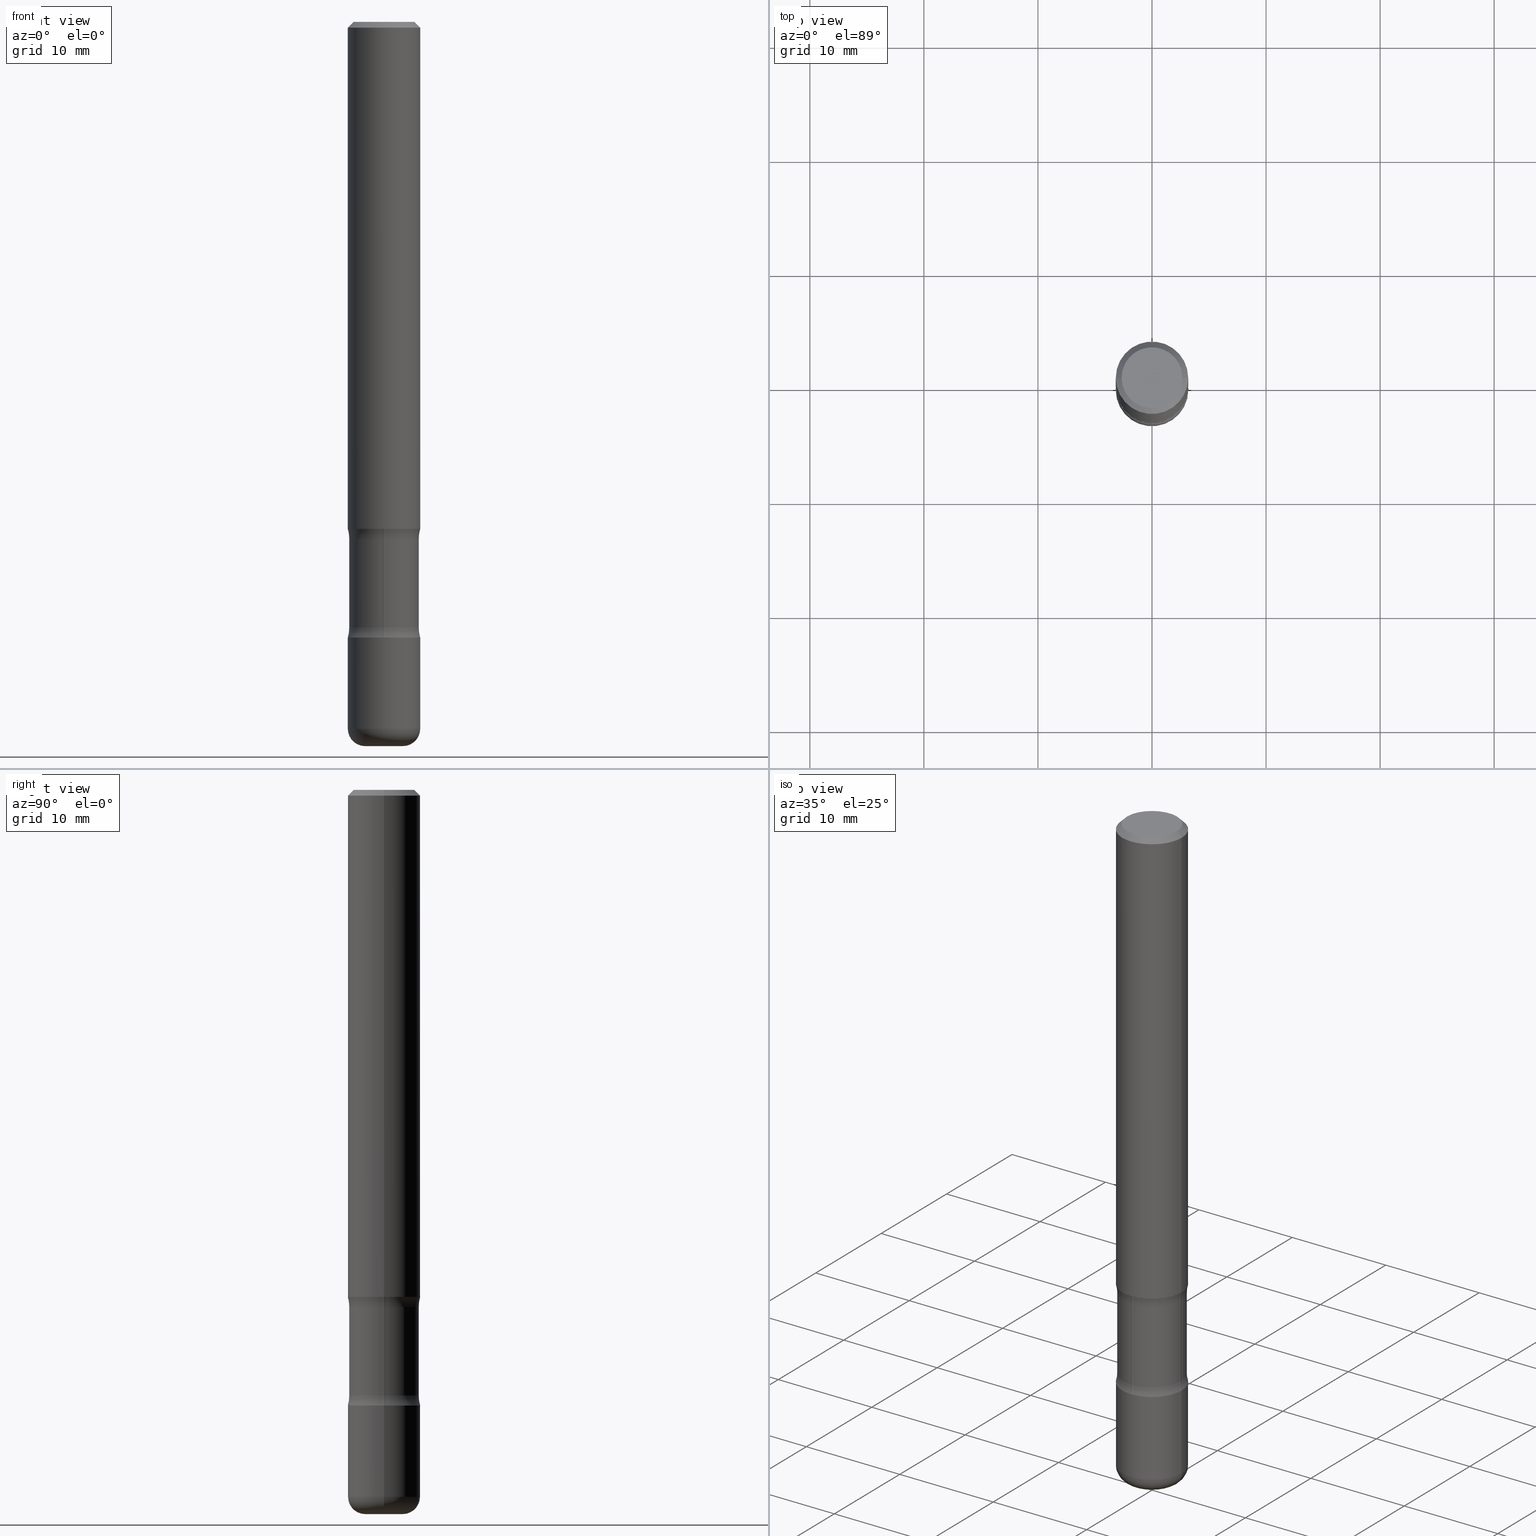
[diagram: canonical four-view strip — front | top / right | iso, engineering-drawing reading convention]
A machine part, canonical four-view strip (front | top / right | iso — engineering-drawing reading convention). The complete STEP part file that produces these views, byte-faithful:
ISO-10303-21;
HEADER;
FILE_DESCRIPTION (( 'STEP AP203' ),
    '1' );
FILE_NAME ('36236.STEP',
    '2023-03-11T07:12:04',
    ( '' ),
    ( '' ),
    'SwSTEP 2.0',
    'SolidWorks 2022',
    '' );
FILE_SCHEMA (( 'CONFIG_CONTROL_DESIGN' ));
ENDSEC;

DATA;
#1 = PERSON ( 'UNSPECIFIED', 'UNSPECIFIED', 'UNSPECIFIED', ('UNSPECIFIED'), ('UNSPECIFIED'), ('UNSPECIFIED') ) ;
#2 = CARTESIAN_POINT ( 'NONE',  ( -8.404110047269600546E-16, -0.1200000000000069622, -2.089999999999998082 ) ) ;
#3 = ORIENTED_EDGE ( 'NONE', *, *, #608, .T. ) ;
#4 = ADVANCED_FACE ( 'NONE', ( #69 ), #698, .T. ) ;
#5 = TOROIDAL_SURFACE ( 'NONE', #106, 0.2449999999999997180, 0.1250000000000000000 ) ;
#6 = AXIS2_PLACEMENT_3D ( 'NONE', #792, #480, #287 ) ;
#7 = EDGE_CURVE ( 'NONE', #81, #59, #168, .T. ) ;
#8 = CIRCLE ( 'NONE', #135, 0.1049999999999997047 ) ;
#9 = ORIENTED_EDGE ( 'NONE', *, *, #719, .T. ) ;
#10 = CIRCLE ( 'NONE', #658, 0.1199999999999996764 ) ;
#11 = CARTESIAN_POINT ( 'NONE',  ( 0.1199999999999996764, -8.135151519504520597E-15, -2.089999999999998526 ) ) ;
#12 = CARTESIAN_POINT ( 'NONE',  ( 5.196621213143415268E-29, -7.419397845041683624E-15, -2.125000000000000000 ) ) ;
#13 = CC_DESIGN_DATE_AND_TIME_ASSIGNMENT ( #47, #289, ( #444 ) ) ;
#14 = APPLICATION_CONTEXT ( 'configuration controlled 3d designs of mechanical parts and assemblies' ) ;
#15 = DIRECTION ( 'NONE',  ( 1.000000000000000000, -6.982962677686267499E-15, 0.000000000000000000 ) ) ;
#16 = ORIENTED_EDGE ( 'NONE', *, *, #323, .T. ) ;
#17 = DIRECTION ( 'NONE',  ( 2.438088387897960049E-29, -3.491481338843145188E-15, -1.000000000000000000 ) ) ;
#18 = CARTESIAN_POINT ( 'NONE',  ( 0.1199999999999996764, -7.070249711157368710E-15, -1.785000000000001252 ) ) ;
#19 = CONICAL_SURFACE ( 'NONE', #722, 1127.411546571190001, 1.535889741755001037 ) ;
#20 = ORIENTED_EDGE ( 'NONE', *, *, #253, .F. ) ;
#21 = AXIS2_PLACEMENT_3D ( 'NONE', #386, #26, #643 ) ;
#22 = EDGE_CURVE ( 'NONE', #524, #59, #586, .T. ) ;
#23 = PLANE ( 'NONE',  #107 ) ;
#24 = CARTESIAN_POINT ( 'NONE',  ( 6.113672015462840371E-29, -8.728703347107863365E-15, -2.499999999999999556 ) ) ;
#25 = ORIENTED_EDGE ( 'NONE', *, *, #334, .F. ) ;
#26 = DIRECTION ( 'NONE',  ( 1.000000000000000000, -6.860497997771530774E-15, 4.840736773245030018E-29 ) ) ;
#27 = DIRECTION ( 'NONE',  ( 6.982962677686265922E-15, 1.000000000000000000, -4.553079989440450925E-15 ) ) ;
#28 = EDGE_LOOP ( 'NONE', ( #269, #510 ) ) ;
#29 = DIRECTION ( 'NONE',  ( -2.445468806185136597E-29, 3.491481338843145583E-15, 1.000000000000000000 ) ) ;
#30 = CARTESIAN_POINT ( 'NONE',  ( -0.1249999999999996947, 8.030407079339179699E-16, -0.02000000000000007674 ) ) ;
#31 = EDGE_CURVE ( 'NONE', #559, #179, #213, .T. ) ;
#32 = ORIENTED_EDGE ( 'NONE', *, *, #7, .F. ) ;
#33 = CIRCLE ( 'NONE', #80, 0.1250000000000000278 ) ;
#34 = CIRCLE ( 'NONE', #261, 0.1250000000000000278 ) ;
#35 = FACE_OUTER_BOUND ( 'NONE', #654, .T. ) ;
#36 = DIRECTION ( 'NONE',  ( -2.445468806185136597E-29, 3.491481338843145583E-15, 1.000000000000000000 ) ) ;
#37 = EDGE_CURVE ( 'NONE', #279, #782, #199, .T. ) ;
#38 = ORIENTED_EDGE ( 'NONE', *, *, #479, .T. ) ;
#39 =( NAMED_UNIT ( * ) PLANE_ANGLE_UNIT ( ) SI_UNIT ( $, .RADIAN. ) );
#40 = PLANE ( 'NONE',  #188 ) ;
#41 = FACE_OUTER_BOUND ( 'NONE', #758, .T. ) ;
#42 = DIRECTION ( 'NONE',  ( -2.445468806185136597E-29, 3.491481338843145583E-15, 1.000000000000000000 ) ) ;
#43 = EDGE_CURVE ( 'NONE', #50, #209, #56, .T. ) ;
#44 = CIRCLE ( 'NONE', #201, 0.1250000000000000278 ) ;
#45 = DIRECTION ( 'NONE',  ( 2.441927486943611440E-29, -3.496552709556383177E-15, -1.000000000000000000 ) ) ;
#46 = CIRCLE ( 'NONE', #483, 0.1250000000000000278 ) ;
#47 = DATE_AND_TIME ( #676, #799 ) ;
#48 = CARTESIAN_POINT ( 'NONE',  ( 5.196621213143415268E-29, -7.419397845041683624E-15, -2.125000000000000000 ) ) ;
#49 = FACE_OUTER_BOUND ( 'NONE', #464, .T. ) ;
#50 = VERTEX_POINT ( 'NONE', #319 ) ;
#51 = CALENDAR_DATE ( 2023, 11, 3 ) ;
#52 = DIRECTION ( 'NONE',  ( 6.982962677686265133E-15, 1.000000000000000000, -3.496552709556383177E-15 ) ) ;
#53 = ORIENTED_EDGE ( 'NONE', *, *, #103, .T. ) ;
#54 = ADVANCED_FACE ( 'NONE', ( #693 ), #245, .F. ) ;
#55 = APPROVAL_ROLE ( '' ) ;
#56 = CIRCLE ( 'NONE', #511, 0.1199999999999996764 ) ;
#57 = CARTESIAN_POINT ( 'NONE',  ( 4.890937612370292426E-31, -6.982962677686317493E-17, -0.02000000000000007674 ) ) ;
#58 = CIRCLE ( 'NONE', #247, 0.1049999999999997047 ) ;
#59 = VERTEX_POINT ( 'NONE', #18 ) ;
#60 = APPLICATION_PROTOCOL_DEFINITION ( 'international standard', 'config_control_design', 1994, #256 ) ;
#61 = CARTESIAN_POINT ( 'NONE',  ( 4.366365867582590893E-29, -6.230569923792518818E-15, -1.785000000000001252 ) ) ;
#62 = DIRECTION ( 'NONE',  ( -2.445468806185136597E-29, 3.491481338843145583E-15, 1.000000000000000000 ) ) ;
#63 = VERTEX_POINT ( 'NONE', #208 ) ;
#64 = CARTESIAN_POINT ( 'NONE',  ( 0.1049999999999997047, -8.238720831321557908E-16, -4.695363739109907908E-17 ) ) ;
#65 = CARTESIAN_POINT ( 'NONE',  ( 6.113672015462843734E-29, -8.728703347107868098E-15, -2.500000000000001332 ) ) ;
#66 = VERTEX_POINT ( 'NONE', #387 ) ;
#67 = MANIFOLD_SOLID_BREP ( 'Body-Move/Copy2[1]', #284 ) ;
#68 = FACE_OUTER_BOUND ( 'NONE', #729, .T. ) ;
#69 = FACE_OUTER_BOUND ( 'NONE', #299, .T. ) ;
#70 = CIRCLE ( 'NONE', #440, 0.06500000000000001610 ) ;
#71 = AXIS2_PLACEMENT_3D ( 'NONE', #441, #624, #78 ) ;
#72 = DIRECTION ( 'NONE',  ( -1.000000000000000000, 6.982962677686265922E-15, -4.883557194083112340E-29 ) ) ;
#73 = ORIENTED_EDGE ( 'NONE', *, *, #647, .T. ) ;
#74 = CARTESIAN_POINT ( 'NONE',  ( 5.196621213143415268E-29, -7.419397845041683624E-15, -2.125000000000000000 ) ) ;
#75 = CARTESIAN_POINT ( 'NONE',  ( 0.2449999999999996347, -7.943120045868153627E-15, -1.785000000000001696 ) ) ;
#76 = EDGE_CURVE ( 'NONE', #803, #806, #706, .T. ) ;
#77 = ORIENTED_EDGE ( 'NONE', *, *, #43, .F. ) ;
#78 = DIRECTION ( 'NONE',  ( 1.000000000000000000, -6.982962677686269077E-15, 0.000000000000000000 ) ) ;
#79 = DIRECTION ( 'NONE',  ( -2.445468806185136597E-29, 3.491481338843145583E-15, 1.000000000000000000 ) ) ;
#80 = AXIS2_PLACEMENT_3D ( 'NONE', #228, #283, #540 ) ;
#81 = VERTEX_POINT ( 'NONE', #142 ) ;
#82 = EDGE_CURVE ( 'NONE', #459, #524, #528, .T. ) ;
#83 = CIRCLE ( 'NONE', #227, 0.05250000000000000500 ) ;
#84 = PRODUCT_DEFINITION_FORMATION_WITH_SPECIFIED_SOURCE ( 'ANY', '', #566, .NOT_KNOWN. ) ;
#85 = CARTESIAN_POINT ( 'NONE',  ( 5.196621213143415268E-29, -7.419397845041683624E-15, -2.125000000000000000 ) ) ;
#86 = CARTESIAN_POINT ( 'NONE',  ( 4.365161819040472816E-29, -6.232294189835020176E-15, -1.785000000000001696 ) ) ;
#87 = EDGE_LOOP ( 'NONE', ( #233, #707, #681, #32 ) ) ;
#88 = DIRECTION ( 'NONE',  ( -2.445468806185136877E-29, 3.491481338843145188E-15, 1.000000000000000000 ) ) ;
#89 = EDGE_CURVE ( 'NONE', #699, #803, #70, .T. ) ;
#90 = LINE ( 'NONE', #741, #541 ) ;
#91 = ORIENTED_EDGE ( 'NONE', *, *, #504, .F. ) ;
#92 = DIRECTION ( 'NONE',  ( 6.982962677686265922E-15, 1.000000000000000000, -3.496552709556383571E-15 ) ) ;
#93 = ADVANCED_FACE ( 'NONE', ( #450, #704 ), #645, .F. ) ;
#94 = FACE_OUTER_BOUND ( 'NONE', #87, .T. ) ;
#95 = ORIENTED_EDGE ( 'NONE', *, *, #575, .F. ) ;
#96 = CIRCLE ( 'NONE', #362, 0.1199999999999996764 ) ;
#97 = AXIS2_PLACEMENT_3D ( 'NONE', #130, #258, #762 ) ;
#98 = CARTESIAN_POINT ( 'NONE',  ( 4.279570410823989044E-29, -6.110092342975505460E-15, -1.750000000000000222 ) ) ;
#99 = LOCAL_TIME ( 2, 12, 4.000000000000000000, #672 ) ;
#100 = ADVANCED_FACE ( 'NONE', ( #192 ), #771, .T. ) ;
#101 = DIRECTION ( 'NONE',  ( -2.445468806185136597E-29, 3.491481338843145583E-15, 1.000000000000000000 ) ) ;
#102 = CARTESIAN_POINT ( 'NONE',  ( 8.379555213223933021E-16, 0.1199999999999934452, -1.785000000000001918 ) ) ;
#103 = EDGE_CURVE ( 'NONE', #63, #174, #282, .T. ) ;
#104 = CARTESIAN_POINT ( 'NONE',  ( 5.111153751100385248E-29, -7.297018500207206808E-15, -2.089999999999998526 ) ) ;
#105 = PERSON_AND_ORGANIZATION_ROLE ( 'design_owner' ) ;
#106 = AXIS2_PLACEMENT_3D ( 'NONE', #358, #416, #173 ) ;
#107 = AXIS2_PLACEMENT_3D ( 'NONE', #74, #17, #703 ) ;
#108 = FACE_OUTER_BOUND ( 'NONE', #551, .T. ) ;
#109 = DIRECTION ( 'NONE',  ( 2.441927486943611440E-29, -3.496552709556383571E-15, -1.000000000000000000 ) ) ;
#110 = CC_DESIGN_APPROVAL ( #783, ( #84 ) ) ;
#111 = ORIENTED_EDGE ( 'NONE', *, *, #300, .F. ) ;
#112 = PLANE ( 'NONE',  #567 ) ;
#113 = ADVANCED_FACE ( 'NONE', ( #653 ), #226, .F. ) ;
#114 = ORIENTED_EDGE ( 'NONE', *, *, #742, .T. ) ;
#115 = PERSON_AND_ORGANIZATION ( #1, #595 ) ;
#116 = DIRECTION ( 'NONE',  ( -1.000000000000000000, 6.982962677686265922E-15, -4.883557194083112340E-29 ) ) ;
#117 = EDGE_CURVE ( 'NONE', #578, #59, #260, .T. ) ;
#118 = ORIENTED_EDGE ( 'NONE', *, *, #512, .T. ) ;
#119 = PERSON_AND_ORGANIZATION ( #1, #595 ) ;
#120 = FACE_OUTER_BOUND ( 'NONE', #768, .T. ) ;
#121 = ORIENTED_EDGE ( 'NONE', *, *, #727, .F. ) ;
#122 = AXIS2_PLACEMENT_3D ( 'NONE', #697, #72, #207 ) ;
#123 = LOCAL_TIME ( 2, 12, 4.000000000000000000, #489 ) ;
#124 = VERTEX_POINT ( 'NONE', #333 ) ;
#125 = SHAPE_DEFINITION_REPRESENTATION ( #291, #305 ) ;
#126 = DIRECTION ( 'NONE',  ( -2.445468806185136597E-29, 3.491481338843145583E-15, 1.000000000000000000 ) ) ;
#127 = DIRECTION ( 'NONE',  ( -1.000000000000000000, 6.982962677686266711E-15, 0.000000000000000000 ) ) ;
#128 = ORIENTED_EDGE ( 'NONE', *, *, #539, .F. ) ;
#129 = ADVANCED_FACE ( 'NONE', ( #94 ), #733, .F. ) ;
#130 = CARTESIAN_POINT ( 'NONE',  ( 5.111029804926932617E-29, -7.297195998182170485E-15, -2.089999999999998526 ) ) ;
#131 = ORIENTED_EDGE ( 'NONE', *, *, #767, .T. ) ;
#132 = CARTESIAN_POINT ( 'NONE',  ( -0.1199999999999996764, -6.487882070305806315E-15, -2.089999999999998526 ) ) ;
#133 = DIRECTION ( 'NONE',  ( 2.441927486943611440E-29, -3.496552709556383177E-15, -1.000000000000000000 ) ) ;
#134 = AXIS2_PLACEMENT_3D ( 'NONE', #400, #36, #164 ) ;
#135 = AXIS2_PLACEMENT_3D ( 'NONE', #223, #29, #466 ) ;
#136 = ORIENTED_EDGE ( 'NONE', *, *, #190, .T. ) ;
#137 = CARTESIAN_POINT ( 'NONE',  ( 4.279570410823989044E-29, -6.110092342975505460E-15, -1.750000000000000222 ) ) ;
#138 = ORIENTED_EDGE ( 'NONE', *, *, #37, .T. ) ;
#139 = EDGE_CURVE ( 'NONE', #394, #669, #44, .T. ) ;
#140 = ORIENTED_EDGE ( 'NONE', *, *, #37, .F. ) ;
#141 = CARTESIAN_POINT ( 'NONE',  ( -1.680822009453978879E-15, -0.2450000000000058797, -1.785000000000000808 ) ) ;
#142 = CARTESIAN_POINT ( 'NONE',  ( 0.1250000000000000555, -6.982962677686288799E-15, -1.750000000000000222 ) ) ;
#143 = ORIENTED_EDGE ( 'NONE', *, *, #242, .T. ) ;
#144 = DIRECTION ( 'NONE',  ( -2.445468806185136597E-29, 3.491481338843145583E-15, 1.000000000000000000 ) ) ;
#145 = CARTESIAN_POINT ( 'NONE',  ( 0.1199999999999996764, -6.948047864297855572E-15, -1.750000000000000222 ) ) ;
#146 = AXIS2_PLACEMENT_3D ( 'NONE', #252, #195, #701 ) ;
#147 = EDGE_LOOP ( 'NONE', ( #370, #114 ) ) ;
#148 = ADVANCED_FACE ( 'NONE', ( #41 ), #19, .F. ) ;
#149 = LINE ( 'NONE', #725, #236 ) ;
#150 = CYLINDRICAL_SURFACE ( 'NONE', #457, 0.1199999999999996764 ) ;
#151 = DIRECTION ( 'NONE',  ( -2.445468806185136597E-29, 3.491481338843145583E-15, 1.000000000000000000 ) ) ;
#152 = ORIENTED_EDGE ( 'NONE', *, *, #89, .T. ) ;
#153 = DIRECTION ( 'NONE',  ( -1.000000000000000000, 6.982962677686265922E-15, -4.876176775795935793E-29 ) ) ;
#154 = DIRECTION ( 'NONE',  ( 2.445468806185136597E-29, -3.491481338843145583E-15, -1.000000000000000000 ) ) ;
#155 = EDGE_LOOP ( 'NONE', ( #77, #678, #138, #182 ) ) ;
#156 = DIRECTION ( 'NONE',  ( -2.445468806185136597E-29, 3.491481338843145583E-15, 1.000000000000000000 ) ) ;
#157 = DIRECTION ( 'NONE',  ( 1.000000000000000000, -6.982962677686261977E-15, 0.000000000000000000 ) ) ;
#158 = CARTESIAN_POINT ( 'NONE',  ( 5.196621213143415268E-29, -7.419397845041683624E-15, -2.125000000000000000 ) ) ;
#159 = AXIS2_PLACEMENT_3D ( 'NONE', #487, #116, #294 ) ;
#160 = AXIS2_PLACEMENT_3D ( 'NONE', #198, #518, #765 ) ;
#161 = DIRECTION ( 'NONE',  ( 1.000000000000000000, -6.982962677686269866E-15, 4.883557194083114022E-29 ) ) ;
#162 = DIRECTION ( 'NONE',  ( 1.000000000000000000, -6.982962677686261977E-15, 0.000000000000000000 ) ) ;
#163 = EDGE_CURVE ( 'NONE', #59, #578, #602, .T. ) ;
#164 = DIRECTION ( 'NONE',  ( 1.000000000000000000, -6.982962677686266711E-15, 4.883557194083112901E-29 ) ) ;
#165 = PERSON_AND_ORGANIZATION ( #1, #595 ) ;
#166 = LINE ( 'NONE', #667, #320 ) ;
#167 = EDGE_LOOP ( 'NONE', ( #517, #417, #220, #304 ) ) ;
#168 = CIRCLE ( 'NONE', #628, 0.1249999999999999584 ) ;
#169 = ADVANCED_FACE ( 'NONE', ( #474 ), #427, .F. ) ;
#170 = PERSON_AND_ORGANIZATION ( #1, #595 ) ;
#171 = AXIS2_PLACEMENT_3D ( 'NONE', #723, #101, #162 ) ;
#172 = CIRCLE ( 'NONE', #789, 0.1249999999999996947 ) ;
#173 = DIRECTION ( 'NONE',  ( 1.000000000000000000, -6.982962677686269866E-15, 4.883557194083114022E-29 ) ) ;
#174 = VERTEX_POINT ( 'NONE', #30 ) ;
#175 = PERSON_AND_ORGANIZATION_ROLE ( 'creator' ) ;
#176 = CC_DESIGN_PERSON_AND_ORGANIZATION_ASSIGNMENT ( #165, #105, ( #566 ) ) ;
#177 = EDGE_CURVE ( 'NONE', #806, #621, #402, .T. ) ;
#178 = DIRECTION ( 'NONE',  ( -1.000000000000000000, 6.982962677686265922E-15, -4.876176775795935793E-29 ) ) ;
#179 = VERTEX_POINT ( 'NONE', #340 ) ;
#180 = MECHANICAL_CONTEXT ( 'NONE', #14, 'mechanical' ) ;
#181 = DIRECTION ( 'NONE',  ( 1.000000000000000000, -6.982962677686266711E-15, 0.000000000000000000 ) ) ;
#182 = ORIENTED_EDGE ( 'NONE', *, *, #485, .F. ) ;
#183 = ORIENTED_EDGE ( 'NONE', *, *, #539, .T. ) ;
#184 = PERSON_AND_ORGANIZATION_ROLE ( 'classification_officer' ) ;
#185 = CARTESIAN_POINT ( 'NONE',  ( 0.06500000000000000222, -8.973107040826881753E-15, -2.440000000000000391 ) ) ;
#186 = CIRCLE ( 'NONE', #456, 0.1249999999999996947 ) ;
#187 = ORIENTED_EDGE ( 'NONE', *, *, #512, .F. ) ;
#188 = AXIS2_PLACEMENT_3D ( 'NONE', #85, #715, #153 ) ;
#189 = CC_DESIGN_APPROVAL ( #490, ( #374 ) ) ;
#190 = EDGE_CURVE ( 'NONE', #448, #675, #463, .T. ) ;
#191 = LINE ( 'NONE', #437, #644 ) ;
#192 = FACE_OUTER_BOUND ( 'NONE', #627, .T. ) ;
#193 = ORIENTED_EDGE ( 'NONE', *, *, #22, .T. ) ;
#194 = DIRECTION ( 'NONE',  ( -2.445468806185136597E-29, 3.491481338843145583E-15, 1.000000000000000000 ) ) ;
#195 = DIRECTION ( 'NONE',  ( 2.441927486943611440E-29, -3.496552709556383177E-15, -1.000000000000000000 ) ) ;
#196 = VERTEX_POINT ( 'NONE', #404 ) ;
#197 = EDGE_CURVE ( 'NONE', #803, #699, #694, .T. ) ;
#198 = CARTESIAN_POINT ( 'NONE',  ( 0.000000000000000000, 0.000000000000000000, 0.000000000000000000 ) ) ;
#199 = CIRCLE ( 'NONE', #146, 0.1250000000000000278 ) ;
#200 = ORIENTED_EDGE ( 'NONE', *, *, #719, .F. ) ;
#201 = AXIS2_PLACEMENT_3D ( 'NONE', #278, #267, #470 ) ;
#202 = AXIS2_PLACEMENT_3D ( 'NONE', #635, #306, #315 ) ;
#203 = PLANE ( 'NONE',  #249 ) ;
#204 = DESIGN_CONTEXT ( 'detailed design', #256, 'design' ) ;
#205 = ORIENTED_EDGE ( 'NONE', *, *, #197, .T. ) ;
#206 = ORIENTED_EDGE ( 'NONE', *, *, #314, .F. ) ;
#207 = DIRECTION ( 'NONE',  ( -6.982962677686265922E-15, -1.000000000000000000, 0.000000000000000000 ) ) ;
#208 = CARTESIAN_POINT ( 'NONE',  ( -0.1049999999999997047, 7.681258945454869124E-16, -4.695363739110977184E-17 ) ) ;
#209 = VERTEX_POINT ( 'NONE', #102 ) ;
#210 = DIRECTION ( 'NONE',  ( 2.445468806185136597E-29, -3.491481338843145583E-15, -1.000000000000000000 ) ) ;
#211 = DIRECTION ( 'NONE',  ( 2.445468806185136597E-29, -3.491481338843145583E-15, -1.000000000000000000 ) ) ;
#212 = CARTESIAN_POINT ( 'NONE',  ( 1.148236555768741665E-45, -1.639377487418492057E-31, -4.695363739110452099E-17 ) ) ;
#213 = CIRCLE ( 'NONE', #497, 0.1250000000000000278 ) ;
#214 = AXIS2_PLACEMENT_3D ( 'NONE', #355, #62, #303 ) ;
#215 = APPROVAL ( #613, 'UNSPECIFIED' ) ;
#216 = AXIS2_PLACEMENT_3D ( 'NONE', #313, #264, #563 ) ;
#217 = VERTEX_POINT ( 'NONE', #601 ) ;
#218 = FACE_OUTER_BOUND ( 'NONE', #147, .T. ) ;
#219 = DIRECTION ( 'NONE',  ( -2.445468806185136597E-29, 3.491481338843145583E-15, 1.000000000000000000 ) ) ;
#220 = ORIENTED_EDGE ( 'NONE', *, *, #633, .T. ) ;
#221 = DIRECTION ( 'NONE',  ( -2.445468806185136597E-29, 3.491481338843145583E-15, 1.000000000000000000 ) ) ;
#222 =( NAMED_UNIT ( * ) SI_UNIT ( $, .STERADIAN. ) SOLID_ANGLE_UNIT ( ) );
#223 = CARTESIAN_POINT ( 'NONE',  ( 1.148236555768741665E-45, -1.639377487418492057E-31, -4.695363739110452099E-17 ) ) ;
#224 = EDGE_CURVE ( 'NONE', #124, #196, #33, .T. ) ;
#225 = DIRECTION ( 'NONE',  ( 6.982962677686265922E-15, 1.000000000000000000, -3.496552709556383177E-15 ) ) ;
#226 = TOROIDAL_SURFACE ( 'NONE', #134, 0.2449999999999996347, 0.1250000000000000000 ) ;
#227 = AXIS2_PLACEMENT_3D ( 'NONE', #65, #573, #15 ) ;
#228 = CARTESIAN_POINT ( 'NONE',  ( 4.279570410823989044E-29, -6.110092342975505460E-15, -1.750000000000000222 ) ) ;
#229 = DIRECTION ( 'NONE',  ( -6.982962677686266711E-15, -1.000000000000000000, 3.491481338843145583E-15 ) ) ;
#230 = ORIENTED_EDGE ( 'NONE', *, *, #224, .F. ) ;
#231 = EDGE_CURVE ( 'NONE', #621, #806, #471, .T. ) ;
#232 = FACE_OUTER_BOUND ( 'NONE', #155, .T. ) ;
#233 = ORIENTED_EDGE ( 'NONE', *, *, #523, .F. ) ;
#234 = COORDINATED_UNIVERSAL_TIME_OFFSET ( 5, 0, .BEHIND. ) ;
#235 = AXIS2_PLACEMENT_3D ( 'NONE', #591, #341, #272 ) ;
#236 = VECTOR ( 'NONE', #538, 39.37007874015748143 ) ;
#237 = CARTESIAN_POINT ( 'NONE',  ( 4.280898405539560873E-29, -6.108190578958041214E-15, -1.750000000000000222 ) ) ;
#238 = ORIENTED_EDGE ( 'NONE', *, *, #585, .T. ) ;
#239 = DATE_AND_TIME ( #51, #458 ) ;
#240 = ORIENTED_EDGE ( 'NONE', *, *, #767, .F. ) ;
#241 = PLANE ( 'NONE',  #616 ) ;
#242 = EDGE_CURVE ( 'NONE', #359, #547, #96, .T. ) ;
#243 = ORIENTED_EDGE ( 'NONE', *, *, #242, .F. ) ;
#244 = ORIENTED_EDGE ( 'NONE', *, *, #268, .F. ) ;
#245 = TOROIDAL_SURFACE ( 'NONE', #708, 0.2449999999999996347, 0.1250000000000000000 ) ;
#246 = DIRECTION ( 'NONE',  ( 1.000000000000000000, -6.860497997771530774E-15, 4.840736773245030018E-29 ) ) ;
#247 = AXIS2_PLACEMENT_3D ( 'NONE', #212, #712, #393 ) ;
#248 = DIRECTION ( 'NONE',  ( -2.438088387897960049E-29, 3.491481338843145188E-15, 1.000000000000000000 ) ) ;
#249 = AXIS2_PLACEMENT_3D ( 'NONE', #753, #576, #757 ) ;
#250 = LOCAL_TIME ( 2, 12, 4.000000000000000000, #418 ) ;
#251 = CARTESIAN_POINT ( 'NONE',  ( 4.279570410823989044E-29, -6.110092342975505460E-15, -1.750000000000000222 ) ) ;
#252 = CARTESIAN_POINT ( 'NONE',  ( 4.280898405539560873E-29, -6.108190578958041214E-15, -1.750000000000000222 ) ) ;
#253 = EDGE_CURVE ( 'NONE', #63, #734, #58, .T. ) ;
#254 = CARTESIAN_POINT ( 'NONE',  ( 0.000000000000000000, 0.000000000000000000, 0.000000000000000000 ) ) ;
#255 = DIRECTION ( 'NONE',  ( 7.105427357601001859E-15, 1.000000000000000000, -3.491481338843145583E-15 ) ) ;
#256 = APPLICATION_CONTEXT ( 'configuration controlled 3d designs of mechanical parts and assemblies' ) ;
#257 = CC_DESIGN_PERSON_AND_ORGANIZATION_ASSIGNMENT ( #361, #293, ( #84 ) ) ;
#258 = DIRECTION ( 'NONE',  ( 2.441927486943611440E-29, -3.496552709556383177E-15, -1.000000000000000000 ) ) ;
#259 = VERTEX_POINT ( 'NONE', #650 ) ;
#260 = CIRCLE ( 'NONE', #273, 0.1199999999999996764 ) ;
#261 = AXIS2_PLACEMENT_3D ( 'NONE', #137, #449, #366 ) ;
#262 = APPROVAL_PERSON_ORGANIZATION ( #119, #783, #486 ) ;
#263 = ORIENTED_EDGE ( 'NONE', *, *, #82, .F. ) ;
#264 = DIRECTION ( 'NONE',  ( 2.441927486943611440E-29, -3.496552709556383177E-15, -1.000000000000000000 ) ) ;
#265 = DIRECTION ( 'NONE',  ( -2.445468806185136597E-29, 3.491481338843145583E-15, 1.000000000000000000 ) ) ;
#266 = ORIENTED_EDGE ( 'NONE', *, *, #334, .T. ) ;
#267 = DIRECTION ( 'NONE',  ( -2.445468806185136597E-29, 3.491481338843145583E-15, 1.000000000000000000 ) ) ;
#268 = EDGE_CURVE ( 'NONE', #459, #578, #90, .T. ) ;
#269 = ORIENTED_EDGE ( 'NONE', *, *, #89, .F. ) ;
#270 = LINE ( 'NONE', #391, #336 ) ;
#271 = FACE_OUTER_BOUND ( 'NONE', #651, .T. ) ;
#272 = DIRECTION ( 'NONE',  ( 1.000000000000000000, -6.982962677686266711E-15, 4.883557194083112901E-29 ) ) ;
#273 = AXIS2_PLACEMENT_3D ( 'NONE', #534, #42, #157 ) ;
#274 = CIRCLE ( 'NONE', #542, 0.1250000000000000278 ) ;
#275 = EDGE_LOOP ( 'NONE', ( #317, #615, #3, #430 ) ) ;
#276 = DIRECTION ( 'NONE',  ( -2.445468806185136877E-29, 3.491481338843145188E-15, 1.000000000000000000 ) ) ;
#277 = FACE_OUTER_BOUND ( 'NONE', #425, .T. ) ;
#278 = CARTESIAN_POINT ( 'NONE',  ( 5.196621213143415268E-29, -7.419397845041683624E-15, -2.125000000000000000 ) ) ;
#279 = VERTEX_POINT ( 'NONE', #607 ) ;
#280 = EDGE_CURVE ( 'NONE', #699, #621, #579, .T. ) ;
#281 = DIRECTION ( 'NONE',  ( -2.445468806185136597E-29, 3.491481338843145583E-15, 1.000000000000000000 ) ) ;
#282 = LINE ( 'NONE', #522, #760 ) ;
#283 = DIRECTION ( 'NONE',  ( -2.445468806185136597E-29, 3.491481338843145583E-15, 1.000000000000000000 ) ) ;
#284 = CLOSED_SHELL ( 'NONE', ( #148, #746, #384, #93, #408, #4, #659, #800 ) ) ;
#285 = AXIS2_PLACEMENT_3D ( 'NONE', #57, #290, #127 ) ;
#286 = CIRCLE ( 'NONE', #21, 0.1250000000000000000 ) ;
#287 = DIRECTION ( 'NONE',  ( 1.000000000000000000, -6.982962677686264344E-15, 4.883557194083112340E-29 ) ) ;
#288 = EDGE_CURVE ( 'NONE', #587, #675, #656, .T. ) ;
#289 = DATE_TIME_ROLE ( 'classification_date' ) ;
#290 = DIRECTION ( 'NONE',  ( 2.445468806185136597E-29, -3.491481338843145583E-15, -1.000000000000000000 ) ) ;
#291 = PRODUCT_DEFINITION_SHAPE ( 'NONE', 'NONE',  #374 ) ;
#292 = EDGE_LOOP ( 'NONE', ( #9, #745, #243, #638 ) ) ;
#293 = PERSON_AND_ORGANIZATION_ROLE ( 'design_supplier' ) ;
#294 = DIRECTION ( 'NONE',  ( -6.982962677686265922E-15, -1.000000000000000000, 0.000000000000000000 ) ) ;
#295 = ORIENTED_EDGE ( 'NONE', *, *, #253, .T. ) ;
#296 = AXIS2_PLACEMENT_3D ( 'NONE', #795, #495, #561 ) ;
#297 = AXIS2_PLACEMENT_3D ( 'NONE', #588, #392, #737 ) ;
#298 = FACE_OUTER_BOUND ( 'NONE', #636, .T. ) ;
#299 = EDGE_LOOP ( 'NONE', ( #330, #688, #131, #773 ) ) ;
#300 = EDGE_CURVE ( 'NONE', #196, #124, #553, .T. ) ;
#301 = SECURITY_CLASSIFICATION_LEVEL ( 'unclassified' ) ;
#302 = DIRECTION ( 'NONE',  ( 2.441927486943611440E-29, -3.496552709556383177E-15, -1.000000000000000000 ) ) ;
#303 = DIRECTION ( 'NONE',  ( 1.000000000000000000, -6.982962677686264344E-15, 4.883557194083112340E-29 ) ) ;
#304 = ORIENTED_EDGE ( 'NONE', *, *, #727, .T. ) ;
#305 = ADVANCED_BREP_SHAPE_REPRESENTATION ( '36236', ( #67, #612, #332, #618, #484 ), #350 ) ;
#306 = DIRECTION ( 'NONE',  ( 2.441927486943611440E-29, -3.496552709556383177E-15, -1.000000000000000000 ) ) ;
#307 = ORIENTED_EDGE ( 'NONE', *, *, #190, .F. ) ;
#308 = TOROIDAL_SURFACE ( 'NONE', #214, 0.06500000000000000222, 0.05999999999999968553 ) ;
#309 = PLANE ( 'NONE',  #711 ) ;
#310 = AXIS2_PLACEMENT_3D ( 'NONE', #415, #606, #619 ) ;
#311 = DIRECTION ( 'NONE',  ( -6.982962677686266711E-15, -1.000000000000000000, 3.491481338843145583E-15 ) ) ;
#312 = EDGE_CURVE ( 'NONE', #782, #279, #499, .T. ) ;
#313 = CARTESIAN_POINT ( 'NONE',  ( 5.111153751100385248E-29, -7.297018500207206808E-15, -2.089999999999998526 ) ) ;
#314 = EDGE_CURVE ( 'NONE', #734, #66, #477, .T. ) ;
#315 = DIRECTION ( 'NONE',  ( 6.982962677686265922E-15, 1.000000000000000000, -4.370956789862820361E-15 ) ) ;
#316 = DIRECTION ( 'NONE',  ( 2.441927486943611440E-29, -3.496552709556383177E-15, -1.000000000000000000 ) ) ;
#317 = ORIENTED_EDGE ( 'NONE', *, *, #752, .F. ) ;
#318 = DIRECTION ( 'NONE',  ( 2.441927486943611440E-29, -3.496552709556383177E-15, -1.000000000000000000 ) ) ;
#319 = CARTESIAN_POINT ( 'NONE',  ( -8.404110047269684362E-16, -0.1200000000000059214, -1.785000000000000808 ) ) ;
#320 = VECTOR ( 'NONE', #109, 39.37007874015748143 ) ;
#321 = AXIS2_PLACEMENT_3D ( 'NONE', #141, #246, #509 ) ;
#322 = ORIENTED_EDGE ( 'NONE', *, *, #312, .T. ) ;
#323 = EDGE_CURVE ( 'NONE', #209, #359, #166, .T. ) ;
#324 = CARTESIAN_POINT ( 'NONE',  ( -0.1250000000000000555, -7.081127736209354103E-15, -2.125000000000000000 ) ) ;
#325 = CARTESIAN_POINT ( 'NONE',  ( 1.587248126624203287E-27, 2.098191361460335396E-13, -2.500000000000000000 ) ) ;
#326 = ORIENTED_EDGE ( 'NONE', *, *, #7, .T. ) ;
#327 = DIRECTION ( 'NONE',  ( 1.000000000000000000, -6.982962677686265922E-15, 4.876176775795935232E-29 ) ) ;
#328 = CARTESIAN_POINT ( 'NONE',  ( 0.2449999999999997180, -9.008021854215303936E-15, -2.089999999999998526 ) ) ;
#329 = DIRECTION ( 'NONE',  ( -1.000000000000000000, 6.982962677686266711E-15, 0.000000000000000000 ) ) ;
#330 = ORIENTED_EDGE ( 'NONE', *, *, #502, .F. ) ;
#331 = CARTESIAN_POINT ( 'NONE',  ( 0.1249999999999998612, -8.728703347107823527E-16, 6.095220969744912735E-30 ) ) ;
#332 = MANIFOLD_SOLID_BREP ( 'Body-Move/Copy2[3]', #747 ) ;
#333 = CARTESIAN_POINT ( 'NONE',  ( 0.1250000000000000278, -6.982962677686288799E-15, -1.750000000000000222 ) ) ;
#334 = EDGE_CURVE ( 'NONE', #179, #359, #709, .T. ) ;
#335 = VECTOR ( 'NONE', #781, 39.37007874015748143 ) ;
#336 = VECTOR ( 'NONE', #276, 39.37007874015748143 ) ;
#337 = ORIENTED_EDGE ( 'NONE', *, *, #288, .F. ) ;
#338 = LENGTH_MEASURE_WITH_UNIT ( LENGTH_MEASURE( 0.02539999999999999897 ), #532 );
#339 = CARTESIAN_POINT ( 'NONE',  ( 0.1249999999999998473, -9.392084801488056809E-15, -2.440000000000000391 ) ) ;
#340 = CARTESIAN_POINT ( 'NONE',  ( 8.728703347108355022E-16, 0.1249999999999926170, -2.125000000000000444 ) ) ;
#341 = DIRECTION ( 'NONE',  ( -2.445468806185136597E-29, 3.491481338843145583E-15, 1.000000000000000000 ) ) ;
#342 = EDGE_CURVE ( 'NONE', #66, #174, #186, .T. ) ;
#343 = CARTESIAN_POINT ( 'NONE',  ( 5.111029804926932617E-29, -7.297195998182170485E-15, -2.089999999999998526 ) ) ;
#344 = DIRECTION ( 'NONE',  ( 2.441927486943611440E-29, -3.496552709556383177E-15, -1.000000000000000000 ) ) ;
#345 = AXIS2_PLACEMENT_3D ( 'NONE', #438, #255, #446 ) ;
#346 = AXIS2_PLACEMENT_3D ( 'NONE', #546, #45, #52 ) ;
#347 = ADVANCED_FACE ( 'NONE', ( #614 ), #241, .F. ) ;
#348 = CIRCLE ( 'NONE', #202, 0.1250000000000000278 ) ;
#349 = DATE_TIME_ROLE ( 'creation_date' ) ;
#350 =( GEOMETRIC_REPRESENTATION_CONTEXT ( 3 ) GLOBAL_UNCERTAINTY_ASSIGNED_CONTEXT ( ( #590 ) ) GLOBAL_UNIT_ASSIGNED_CONTEXT ( ( #465, #39, #222 ) ) REPRESENTATION_CONTEXT ( 'NONE', 'WORKASPACE' ) );
#351 = CC_DESIGN_PERSON_AND_ORGANIZATION_ASSIGNMENT ( #560, #184, ( #444 ) ) ;
#352 = CYLINDRICAL_SURFACE ( 'NONE', #695, 0.1250000000000000278 ) ;
#353 = CARTESIAN_POINT ( 'NONE',  ( 7.332110811570558550E-16, 0.1049999999999997047, -3.900823592740815069E-16 ) ) ;
#354 = ORIENTED_EDGE ( 'NONE', *, *, #779, .T. ) ;
#355 = CARTESIAN_POINT ( 'NONE',  ( 5.966943887091733341E-29, -8.519214466777275048E-15, -2.440000000000000391 ) ) ;
#356 = ORIENTED_EDGE ( 'NONE', *, *, #103, .F. ) ;
#357 = DIRECTION ( 'NONE',  ( 0.000000000000000000, 0.000000000000000000, 1.000000000000000000 ) ) ;
#358 = CARTESIAN_POINT ( 'NONE',  ( 5.111029804926932617E-29, -7.297195998182170485E-15, -2.089999999999998526 ) ) ;
#359 = VERTEX_POINT ( 'NONE', #687 ) ;
#360 = ADVANCED_FACE ( 'NONE', ( #49 ), #642, .T. ) ;
#361 = PERSON_AND_ORGANIZATION ( #1, #595 ) ;
#362 = AXIS2_PLACEMENT_3D ( 'NONE', #104, #344, #27 ) ;
#363 = AXIS2_PLACEMENT_3D ( 'NONE', #721, #221, #161 ) ;
#364 = ORIENTED_EDGE ( 'NONE', *, *, #342, .F. ) ;
#365 = DIRECTION ( 'NONE',  ( 1.000000000000000000, -6.982962677686269077E-15, 0.000000000000000000 ) ) ;
#366 = DIRECTION ( 'NONE',  ( 1.000000000000000000, -6.982962677686269077E-15, 0.000000000000000000 ) ) ;
#367 = ORIENTED_EDGE ( 'NONE', *, *, #431, .T. ) ;
#368 = ADVANCED_FACE ( 'NONE', ( #232 ), #748, .F. ) ;
#369 = CARTESIAN_POINT ( 'NONE',  ( -8.575622497213895777E-16, -0.1250000000000074662, -2.124999999999999112 ) ) ;
#370 = ORIENTED_EDGE ( 'NONE', *, *, #139, .T. ) ;
#371 = ORIENTED_EDGE ( 'NONE', *, *, #485, .T. ) ;
#372 = AXIS2_PLACEMENT_3D ( 'NONE', #661, #397, #225 ) ;
#373 = LINE ( 'NONE', #506, #515 ) ;
#374 = PRODUCT_DEFINITION ( 'UNKNOWN', '', #84, #204 ) ;
#375 = AXIS2_PLACEMENT_3D ( 'NONE', #48, #126, #365 ) ;
#376 = DIRECTION ( 'NONE',  ( 6.982962677686265922E-15, 1.000000000000000000, -4.553079989440450925E-15 ) ) ;
#377 = CONICAL_SURFACE ( 'NONE', #543, 1127.411546571190001, 1.535889741755001037 ) ;
#378 = ORIENTED_EDGE ( 'NONE', *, *, #224, .T. ) ;
#379 = FACE_OUTER_BOUND ( 'NONE', #793, .T. ) ;
#380 = ORIENTED_EDGE ( 'NONE', *, *, #163, .F. ) ;
#381 = ORIENTED_EDGE ( 'NONE', *, *, #280, .F. ) ;
#382 = FACE_OUTER_BOUND ( 'NONE', #275, .T. ) ;
#383 = CARTESIAN_POINT ( 'NONE',  ( 4.366365867582590893E-29, -6.230569923792518818E-15, -1.785000000000001252 ) ) ;
#384 = ADVANCED_FACE ( 'NONE', ( #298 ), #482, .T. ) ;
#385 = ORIENTED_EDGE ( 'NONE', *, *, #575, .T. ) ;
#386 = CARTESIAN_POINT ( 'NONE',  ( -1.680822009453971780E-15, -0.2450000000000070177, -2.089999999999998082 ) ) ;
#387 = CARTESIAN_POINT ( 'NONE',  ( 0.1249999999999996947, -9.273918764983025741E-16, -0.02000000000000007674 ) ) ;
#388 = AXIS2_PLACEMENT_3D ( 'NONE', #599, #151, #786 ) ;
#389 = CIRCLE ( 'NONE', #375, 0.1250000000000000278 ) ;
#390 = ORIENTED_EDGE ( 'NONE', *, *, #31, .T. ) ;
#391 = CARTESIAN_POINT ( 'NONE',  ( 0.1250000000000000278, -8.728703347107834374E-16, 6.095220969744920442E-30 ) ) ;
#392 = DIRECTION ( 'NONE',  ( 7.105427357601001859E-15, 1.000000000000000000, -3.491481338843145583E-15 ) ) ;
#393 = DIRECTION ( 'NONE',  ( 1.000000000000000000, -6.982962677686265922E-15, 4.874400871621252228E-29 ) ) ;
#394 = VERTEX_POINT ( 'NONE', #420 ) ;
#395 = DIRECTION ( 'NONE',  ( -6.982962677686266711E-15, -1.000000000000000000, 3.491481338843145583E-15 ) ) ;
#396 = ADVANCED_FACE ( 'NONE', ( #424 ), #5, .F. ) ;
#397 = DIRECTION ( 'NONE',  ( 2.441927486943611440E-29, -3.496552709556383177E-15, -1.000000000000000000 ) ) ;
#398 = ORIENTED_EDGE ( 'NONE', *, *, #502, .T. ) ;
#399 = DIRECTION ( 'NONE',  ( 1.000000000000000000, -6.982962677686270655E-15, 0.000000000000000000 ) ) ;
#400 = CARTESIAN_POINT ( 'NONE',  ( 4.365161819040472816E-29, -6.232294189835020176E-15, -1.785000000000001696 ) ) ;
#401 = DIRECTION ( 'NONE',  ( -2.445468806185136597E-29, 3.491481338843145583E-15, 1.000000000000000000 ) ) ;
#402 = CIRCLE ( 'NONE', #412, 0.1250000000000000000 ) ;
#403 = DIRECTION ( 'NONE',  ( -2.445468806185136597E-29, 3.491481338843145583E-15, 1.000000000000000000 ) ) ;
#404 = CARTESIAN_POINT ( 'NONE',  ( -0.1250000000000000278, -2.201782565176054414E-15, -1.750000000000000222 ) ) ;
#405 = CARTESIAN_POINT ( 'NONE',  ( 0.000000000000000000, 0.000000000000000000, 0.000000000000000000 ) ) ;
#406 = CARTESIAN_POINT ( 'NONE',  ( 5.966943887091733341E-29, -8.519214466777275048E-15, -2.440000000000000391 ) ) ;
#407 = ADVANCED_FACE ( 'NONE', ( #680 ), #112, .F. ) ;
#408 = ADVANCED_FACE ( 'NONE', ( #120 ), #308, .T. ) ;
#409 = APPROVAL_ROLE ( '' ) ;
#410 = DIRECTION ( 'NONE',  ( 6.982962677686265922E-15, 1.000000000000000000, -4.370956789862820361E-15 ) ) ;
#411 = ORIENTED_EDGE ( 'NONE', *, *, #431, .F. ) ;
#412 = AXIS2_PLACEMENT_3D ( 'NONE', #529, #219, #537 ) ;
#413 = TOROIDAL_SURFACE ( 'NONE', #363, 0.2449999999999997180, 0.1250000000000000000 ) ;
#414 = APPROVAL_DATE_TIME ( #794, #783 ) ;
#415 = CARTESIAN_POINT ( 'NONE',  ( 4.279570410823989044E-29, -6.110092342975505460E-15, -1.750000000000000222 ) ) ;
#416 = DIRECTION ( 'NONE',  ( -2.445468806185136597E-29, 3.491481338843145583E-15, 1.000000000000000000 ) ) ;
#417 = ORIENTED_EDGE ( 'NONE', *, *, #791, .F. ) ;
#418 = COORDINATED_UNIVERSAL_TIME_OFFSET ( 5, 0, .BEHIND. ) ;
#419 = CARTESIAN_POINT ( 'NONE',  ( 0.06500000000000001610, -9.182595921157470070E-15, -2.499999999999999556 ) ) ;
#420 = CARTESIAN_POINT ( 'NONE',  ( 0.1250000000000000278, -8.292268179752466962E-15, -2.125000000000000000 ) ) ;
#421 = ADVANCED_FACE ( 'NONE', ( #620 ), #23, .T. ) ;
#422 = ORIENTED_EDGE ( 'NONE', *, *, #342, .T. ) ;
#423 = APPROVAL_STATUS ( 'not_yet_approved' ) ;
#424 = FACE_OUTER_BOUND ( 'NONE', #167, .T. ) ;
#425 = EDGE_LOOP ( 'NONE', ( #95, #713, #422, #356 ) ) ;
#426 = CALENDAR_DATE ( 2023, 11, 3 ) ;
#427 = TOROIDAL_SURFACE ( 'NONE', #372, 0.2449999999999997180, 0.1250000000000000000 ) ;
#428 = AXIS2_PLACEMENT_3D ( 'NONE', #328, #395, #770 ) ;
#429 = CARTESIAN_POINT ( 'NONE',  ( 0.1249999999999996947, -9.273918764983025741E-16, -0.02000000000000007674 ) ) ;
#430 = ORIENTED_EDGE ( 'NONE', *, *, #585, .F. ) ;
#431 = EDGE_CURVE ( 'NONE', #547, #359, #581, .T. ) ;
#432 = ORIENTED_EDGE ( 'NONE', *, *, #752, .T. ) ;
#433 = DIMENSIONAL_EXPONENTS ( 1.000000000000000000, 0.000000000000000000, 0.000000000000000000, 0.000000000000000000, 0.000000000000000000, 0.000000000000000000, 0.000000000000000000 ) ;
#434 = DIRECTION ( 'NONE',  ( -2.445468806185136877E-29, 3.491481338843145188E-15, 1.000000000000000000 ) ) ;
#435 = ORIENTED_EDGE ( 'NONE', *, *, #288, .T. ) ;
#436 = ORIENTED_EDGE ( 'NONE', *, *, #31, .F. ) ;
#437 = CARTESIAN_POINT ( 'NONE',  ( -0.1250000000000000278, 8.881784197001254296E-16, -6.148668862818633629E-30 ) ) ;
#438 = CARTESIAN_POINT ( 'NONE',  ( -0.06500000000000000222, -8.057361688533210306E-15, -2.440000000000000391 ) ) ;
#439 = EDGE_LOOP ( 'NONE', ( #121, #187 ) ) ;
#440 = AXIS2_PLACEMENT_3D ( 'NONE', #24, #265, #519 ) ;
#441 = CARTESIAN_POINT ( 'NONE',  ( 5.196621213143415268E-29, -7.419397845041683624E-15, -2.125000000000000000 ) ) ;
#442 = AXIS2_PLACEMENT_3D ( 'NONE', #689, #318, #580 ) ;
#443 = ORIENTED_EDGE ( 'NONE', *, *, #139, .F. ) ;
#444 = SECURITY_CLASSIFICATION ( '', '', #301 ) ;
#445 = DIRECTION ( 'NONE',  ( 1.000000000000000000, -6.982962677686266711E-15, 4.876176775795935793E-29 ) ) ;
#446 = DIRECTION ( 'NONE',  ( -1.000000000000000000, 7.105427357600994759E-15, 0.000000000000000000 ) ) ;
#447 = ADVANCED_FACE ( 'NONE', ( #631 ), #514, .T. ) ;
#448 = VERTEX_POINT ( 'NONE', #692 ) ;
#449 = DIRECTION ( 'NONE',  ( -2.445468806185136597E-29, 3.491481338843145583E-15, 1.000000000000000000 ) ) ;
#450 = FACE_OUTER_BOUND ( 'NONE', #28, .T. ) ;
#451 = EDGE_LOOP ( 'NONE', ( #183, #390 ) ) ;
#452 = DIRECTION ( 'NONE',  ( -1.000000000000000000, 6.982962677686266711E-15, 0.000000000000000000 ) ) ;
#453 = DIRECTION ( 'NONE',  ( -1.000000000000000000, 6.982962677686266711E-15, 0.000000000000000000 ) ) ;
#454 = AXIS2_PLACEMENT_3D ( 'NONE', #788, #594, #716 ) ;
#455 = DIRECTION ( 'NONE',  ( 1.000000000000000000, -6.982962677686262766E-15, 0.000000000000000000 ) ) ;
#456 = AXIS2_PLACEMENT_3D ( 'NONE', #544, #738, #181 ) ;
#457 = AXIS2_PLACEMENT_3D ( 'NONE', #649, #156, #399 ) ;
#458 = LOCAL_TIME ( 2, 12, 4.000000000000000000, #234 ) ;
#459 = VERTEX_POINT ( 'NONE', #132 ) ;
#460 = ADVANCED_FACE ( 'NONE', ( #570 ), #203, .F. ) ;
#461 = FACE_OUTER_BOUND ( 'NONE', #496, .T. ) ;
#462 = CARTESIAN_POINT ( 'NONE',  ( 4.279570410823989044E-29, -6.110092342975505460E-15, -1.750000000000000222 ) ) ;
#463 = LINE ( 'NONE', #720, #335 ) ;
#464 = EDGE_LOOP ( 'NONE', ( #206, #20, #53, #238 ) ) ;
#465 =( CONVERSION_BASED_UNIT ( 'INCH', #338 ) LENGTH_UNIT ( ) NAMED_UNIT ( #433 ) );
#466 = DIRECTION ( 'NONE',  ( 1.000000000000000000, -6.982962677686265922E-15, 4.874400871621252228E-29 ) ) ;
#467 = CARTESIAN_POINT ( 'NONE',  ( 1.023874880948153879E-27, -1.461821975033644859E-13, -41.86824539975916082 ) ) ;
#468 = CARTESIAN_POINT ( 'NONE',  ( 0.1250000000000000278, -8.292268179752468540E-15, -2.125000000000000000 ) ) ;
#469 = LINE ( 'NONE', #521, #775 ) ;
#470 = DIRECTION ( 'NONE',  ( 1.000000000000000000, -6.982962677686269077E-15, 0.000000000000000000 ) ) ;
#471 = CIRCLE ( 'NONE', #796, 0.1250000000000000000 ) ;
#472 = CC_DESIGN_SECURITY_CLASSIFICATION ( #444, ( #84 ) ) ;
#473 = DIRECTION ( 'NONE',  ( -2.445468806185136597E-29, 3.491481338843145583E-15, 1.000000000000000000 ) ) ;
#474 = FACE_OUTER_BOUND ( 'NONE', #755, .T. ) ;
#475 = ADVANCED_FACE ( 'NONE', ( #382 ), #626, .T. ) ;
#476 = APPLICATION_PROTOCOL_DEFINITION ( 'international standard', 'config_control_design', 1994, #14 ) ;
#477 = LINE ( 'NONE', #429, #629 ) ;
#478 = EDGE_LOOP ( 'NONE', ( #778, #565, #326, #520 ) ) ;
#479 = EDGE_CURVE ( 'NONE', #675, #587, #83, .T. ) ;
#480 = DIRECTION ( 'NONE',  ( -2.445468806185136597E-29, 3.491481338843145583E-15, 1.000000000000000000 ) ) ;
#481 = ORIENTED_EDGE ( 'NONE', *, *, #231, .F. ) ;
#482 = TOROIDAL_SURFACE ( 'NONE', #6, 0.06500000000000000222, 0.05999999999999968553 ) ;
#483 = AXIS2_PLACEMENT_3D ( 'NONE', #158, #401, #666 ) ;
#484 = AXIS2_PLACEMENT_3D ( 'NONE', #731, #357, #740 ) ;
#485 = EDGE_CURVE ( 'NONE', #209, #782, #617, .T. ) ;
#486 = APPROVAL_ROLE ( '' ) ;
#487 = CARTESIAN_POINT ( 'NONE',  ( 1.710825856033184332E-15, 0.2449999999999923905, -2.089999999999999414 ) ) ;
#488 = ORIENTED_EDGE ( 'NONE', *, *, #548, .T. ) ;
#489 = COORDINATED_UNIVERSAL_TIME_OFFSET ( 5, 0, .BEHIND. ) ;
#490 = APPROVAL ( #423, 'UNSPECIFIED' ) ;
#491 = CARTESIAN_POINT ( 'NONE',  ( 5.196621213143415268E-29, -7.419397845041683624E-15, -2.125000000000000000 ) ) ;
#492 = ORIENTED_EDGE ( 'NONE', *, *, #479, .F. ) ;
#493 = EDGE_LOOP ( 'NONE', ( #435, #38 ) ) ;
#494 = PERSON_AND_ORGANIZATION ( #1, #595 ) ;
#495 = DIRECTION ( 'NONE',  ( -2.445468806185136597E-29, 3.491481338843145583E-15, 1.000000000000000000 ) ) ;
#496 = EDGE_LOOP ( 'NONE', ( #307, #488, #492 ) ) ;
#497 = AXIS2_PLACEMENT_3D ( 'NONE', #12, #133, #754 ) ;
#498 = EDGE_LOOP ( 'NONE', ( #295, #385 ) ) ;
#499 = CIRCLE ( 'NONE', #683, 0.1250000000000000278 ) ;
#500 = VECTOR ( 'NONE', #88, 39.37007874015748143 ) ;
#501 = DIRECTION ( 'NONE',  ( -0.9993908270190954291, 6.856857904024524127E-15, -0.03489949670250995506 ) ) ;
#502 = EDGE_CURVE ( 'NONE', #806, #669, #191, .T. ) ;
#503 = EDGE_LOOP ( 'NONE', ( #73, #508 ) ) ;
#504 = EDGE_CURVE ( 'NONE', #50, #279, #684, .T. ) ;
#505 = ORIENTED_EDGE ( 'NONE', *, *, #791, .T. ) ;
#506 = CARTESIAN_POINT ( 'NONE',  ( -1.266912923422979212E-17, -8.722302273319395875E-15, -2.498166659601683826 ) ) ;
#507 = CARTESIAN_POINT ( 'NONE',  ( 0.000000000000000000, 0.000000000000000000, 0.000000000000000000 ) ) ;
#508 = ORIENTED_EDGE ( 'NONE', *, *, #523, .T. ) ;
#509 = DIRECTION ( 'NONE',  ( 6.860497997771530774E-15, 1.000000000000000000, 0.000000000000000000 ) ) ;
#510 = ORIENTED_EDGE ( 'NONE', *, *, #197, .F. ) ;
#511 = AXIS2_PLACEMENT_3D ( 'NONE', #383, #316, #376 ) ;
#512 = EDGE_CURVE ( 'NONE', #217, #764, #568, .T. ) ;
#513 = AXIS2_PLACEMENT_3D ( 'NONE', #185, #229, #744 ) ;
#514 = CYLINDRICAL_SURFACE ( 'NONE', #603, 0.1249999999999998612 ) ;
#515 = VECTOR ( 'NONE', #501, 39.37007874015748143 ) ;
#516 = DIRECTION ( 'NONE',  ( -2.445468806185136877E-29, 3.491481338843145188E-15, 1.000000000000000000 ) ) ;
#517 = ORIENTED_EDGE ( 'NONE', *, *, #779, .F. ) ;
#518 = DIRECTION ( 'NONE',  ( -2.445468806185136597E-29, 3.491481338843145583E-15, 1.000000000000000000 ) ) ;
#519 = DIRECTION ( 'NONE',  ( 1.000000000000000000, -6.982962677686272233E-15, 0.000000000000000000 ) ) ;
#520 = ORIENTED_EDGE ( 'NONE', *, *, #163, .T. ) ;
#521 = CARTESIAN_POINT ( 'NONE',  ( -8.232597597325204735E-16, -0.1200000000000084055, -2.498166659601683381 ) ) ;
#522 = CARTESIAN_POINT ( 'NONE',  ( -0.1249999999999996947, 8.030407079339179699E-16, -0.02000000000000007674 ) ) ;
#523 = EDGE_CURVE ( 'NONE', #259, #81, #34, .T. ) ;
#524 = VERTEX_POINT ( 'NONE', #11 ) ;
#525 = DIRECTION ( 'NONE',  ( -2.445468806185136597E-29, 3.491481338843145583E-15, 1.000000000000000000 ) ) ;
#526 = CARTESIAN_POINT ( 'NONE',  ( -0.05249999999999987316, -8.362097806529339727E-15, -2.500000000000001332 ) ) ;
#527 = AXIS2_PLACEMENT_3D ( 'NONE', #507, #571, #763 ) ;
#528 = CIRCLE ( 'NONE', #668, 0.1199999999999996764 ) ;
#529 = CARTESIAN_POINT ( 'NONE',  ( 5.966943887091733341E-29, -8.519214466777275048E-15, -2.440000000000000391 ) ) ;
#530 = CIRCLE ( 'NONE', #735, 0.1199999999999996764 ) ;
#531 = ORIENTED_EDGE ( 'NONE', *, *, #664, .T. ) ;
#532 =( LENGTH_UNIT ( ) NAMED_UNIT ( * ) SI_UNIT ( $, .METRE. ) );
#533 = CARTESIAN_POINT ( 'NONE',  ( 4.890937612370292426E-31, -6.982962677686317493E-17, -0.02000000000000007674 ) ) ;
#534 = CARTESIAN_POINT ( 'NONE',  ( 4.365161819040472256E-29, -6.232294189835019387E-15, -1.785000000000001252 ) ) ;
#535 = ORIENTED_EDGE ( 'NONE', *, *, #177, .F. ) ;
#536 = FACE_OUTER_BOUND ( 'NONE', #743, .T. ) ;
#537 = DIRECTION ( 'NONE',  ( 1.000000000000000000, -6.982962677686262766E-15, 0.000000000000000000 ) ) ;
#538 = DIRECTION ( 'NONE',  ( -2.445468806185136877E-29, 3.491481338843145188E-15, 1.000000000000000000 ) ) ;
#539 = EDGE_CURVE ( 'NONE', #179, #559, #348, .T. ) ;
#540 = DIRECTION ( 'NONE',  ( 1.000000000000000000, -6.982962677686269077E-15, 0.000000000000000000 ) ) ;
#541 = VECTOR ( 'NONE', #805, 39.37007874015748143 ) ;
#542 = AXIS2_PLACEMENT_3D ( 'NONE', #98, #144, #598 ) ;
#543 = AXIS2_PLACEMENT_3D ( 'NONE', #769, #210, #452 ) ;
#544 = CARTESIAN_POINT ( 'NONE',  ( 4.890937612370292426E-31, -6.982962677686317493E-17, -0.02000000000000007674 ) ) ;
#545 = DATE_AND_TIME ( #426, #99 ) ;
#546 = CARTESIAN_POINT ( 'NONE',  ( 4.365161819040472816E-29, -6.232294189835020176E-15, -1.785000000000001696 ) ) ;
#547 = VERTEX_POINT ( 'NONE', #2 ) ;
#548 = EDGE_CURVE ( 'NONE', #448, #587, #373, .T. ) ;
#549 = DATE_AND_TIME ( #679, #250 ) ;
#550 = DIRECTION ( 'NONE',  ( -6.982962677686265922E-15, -1.000000000000000000, 3.496552709556383571E-15 ) ) ;
#551 = EDGE_LOOP ( 'NONE', ( #750, #398, #443, #240 ) ) ;
#552 = CLOSED_SHELL ( 'NONE', ( #564, #169, #368, #54, #572, #407, #554, #100 ) ) ;
#553 = CIRCLE ( 'NONE', #296, 0.1250000000000000278 ) ;
#554 = ADVANCED_FACE ( 'NONE', ( #379 ), #630, .F. ) ;
#555 = CIRCLE ( 'NONE', #657, 0.1250000000000000278 ) ;
#556 = PLANE ( 'NONE',  #310 ) ;
#557 = DIRECTION ( 'NONE',  ( -2.445468806185136597E-29, 3.491481338843145583E-15, 1.000000000000000000 ) ) ;
#558 = ORIENTED_EDGE ( 'NONE', *, *, #82, .T. ) ;
#559 = VERTEX_POINT ( 'NONE', #369 ) ;
#560 = PERSON_AND_ORGANIZATION ( #1, #595 ) ;
#561 = DIRECTION ( 'NONE',  ( 1.000000000000000000, -6.982962677686269077E-15, 0.000000000000000000 ) ) ;
#562 = ORIENTED_EDGE ( 'NONE', *, *, #608, .F. ) ;
#563 = DIRECTION ( 'NONE',  ( 6.982962677686265922E-15, 1.000000000000000000, -4.553079989440450925E-15 ) ) ;
#564 = ADVANCED_FACE ( 'NONE', ( #700 ), #639, .T. ) ;
#565 = ORIENTED_EDGE ( 'NONE', *, *, #647, .F. ) ;
#566 = PRODUCT ( '36236', '36236', '', ( #180 ) ) ;
#567 = AXIS2_PLACEMENT_3D ( 'NONE', #491, #674, #550 ) ;
#568 = CIRCLE ( 'NONE', #71, 0.1250000000000000278 ) ;
#569 = CONICAL_SURFACE ( 'NONE', #670, 0.1249999999999996947, 0.7853981633974473908 ) ;
#570 = FACE_OUTER_BOUND ( 'NONE', #625, .T. ) ;
#571 = DIRECTION ( 'NONE',  ( -2.445468806185136597E-29, 3.491481338843145583E-15, 1.000000000000000000 ) ) ;
#572 = ADVANCED_FACE ( 'NONE', ( #68 ), #309, .F. ) ;
#573 = DIRECTION ( 'NONE',  ( -2.445468806185136597E-29, 3.491481338843145583E-15, 1.000000000000000000 ) ) ;
#574 = DIRECTION ( 'NONE',  ( 6.982962677686265133E-15, 1.000000000000000000, -3.496552709556383177E-15 ) ) ;
#575 = EDGE_CURVE ( 'NONE', #734, #63, #8, .T. ) ;
#576 = DIRECTION ( 'NONE',  ( -2.438088387897960049E-29, 3.491481338843145188E-15, 1.000000000000000000 ) ) ;
#577 = ORIENTED_EDGE ( 'NONE', *, *, #589, .F. ) ;
#578 = VERTEX_POINT ( 'NONE', #710 ) ;
#579 = CIRCLE ( 'NONE', #513, 0.05999999999999969247 ) ;
#580 = DIRECTION ( 'NONE',  ( 6.982962677686265922E-15, 1.000000000000000000, -4.553079989440450925E-15 ) ) ;
#581 = CIRCLE ( 'NONE', #216, 0.1199999999999996764 ) ;
#582 = DIRECTION ( 'NONE',  ( 1.000000000000000000, -6.982962677686270655E-15, 0.000000000000000000 ) ) ;
#583 = ORIENTED_EDGE ( 'NONE', *, *, #548, .F. ) ;
#584 = CARTESIAN_POINT ( 'NONE',  ( 0.05249999999999987316, -9.088879491990872306E-15, -2.500000000000001332 ) ) ;
#585 = EDGE_CURVE ( 'NONE', #174, #66, #172, .T. ) ;
#586 = LINE ( 'NONE', #145, #759 ) ;
#587 = VERTEX_POINT ( 'NONE', #526 ) ;
#588 = CARTESIAN_POINT ( 'NONE',  ( -0.2449999999999996347, -4.491464487222777119E-15, -1.785000000000001696 ) ) ;
#589 = EDGE_CURVE ( 'NONE', #50, #547, #469, .T. ) ;
#590 = UNCERTAINTY_MEASURE_WITH_UNIT (LENGTH_MEASURE( 1.000000000000000082E-05 ), #465, 'distance_accuracy_value', 'NONE');
#591 = CARTESIAN_POINT ( 'NONE',  ( 4.365161819040472816E-29, -6.232294189835020176E-15, -1.785000000000001696 ) ) ;
#592 = ORIENTED_EDGE ( 'NONE', *, *, #117, .F. ) ;
#593 = DIRECTION ( 'NONE',  ( 1.000000000000000000, -6.982962677686270655E-15, 0.000000000000000000 ) ) ;
#594 = DIRECTION ( 'NONE',  ( 2.441927486943611440E-29, -3.496552709556383177E-15, -1.000000000000000000 ) ) ;
#595 = ORGANIZATION ( 'UNSPECIFIED', 'UNSPECIFIED', '' ) ;
#596 = EDGE_LOOP ( 'NONE', ( #378, #432, #364, #562 ) ) ;
#597 = DIRECTION ( 'NONE',  ( -1.000000000000000000, 7.105427357601001859E-15, 0.000000000000000000 ) ) ;
#598 = DIRECTION ( 'NONE',  ( 1.000000000000000000, -6.982962677686269077E-15, 0.000000000000000000 ) ) ;
#599 = CARTESIAN_POINT ( 'NONE',  ( 6.113672015462840371E-29, -8.728703347107863365E-15, -2.499999999999999556 ) ) ;
#600 = ADVANCED_FACE ( 'NONE', ( #536 ), #413, .F. ) ;
#601 = CARTESIAN_POINT ( 'NONE',  ( -0.1250000000000000278, -6.531219425341559180E-15, -2.125000000000000000 ) ) ;
#602 = CIRCLE ( 'NONE', #171, 0.1199999999999996764 ) ;
#603 = AXIS2_PLACEMENT_3D ( 'NONE', #254, #194, #445 ) ;
#604 = APPROVAL_PERSON_ORGANIZATION ( #115, #215, #55 ) ;
#605 = PERSON_AND_ORGANIZATION ( #1, #595 ) ;
#606 = DIRECTION ( 'NONE',  ( -2.438088387897960049E-29, 3.491481338843145188E-15, 1.000000000000000000 ) ) ;
#607 = CARTESIAN_POINT ( 'NONE',  ( -8.575622497213987482E-16, -0.1250000000000061617, -1.749999999999999556 ) ) ;
#608 = EDGE_CURVE ( 'NONE', #124, #66, #655, .T. ) ;
#609 = ORIENTED_EDGE ( 'NONE', *, *, #43, .T. ) ;
#610 = DIRECTION ( 'NONE',  ( 0.7071067811865469066, -7.319954787623254468E-15, -0.7071067811865482389 ) ) ;
#611 = EDGE_LOOP ( 'NONE', ( #91, #200, #371, #322 ) ) ;
#612 = MANIFOLD_SOLID_BREP ( 'Body-Move/Copy2[2]', #772 ) ;
#613 = APPROVAL_STATUS ( 'not_yet_approved' ) ;
#614 = FACE_OUTER_BOUND ( 'NONE', #498, .T. ) ;
#615 = ORIENTED_EDGE ( 'NONE', *, *, #300, .T. ) ;
#616 = AXIS2_PLACEMENT_3D ( 'NONE', #353, #732, #178 ) ;
#617 = CIRCLE ( 'NONE', #122, 0.1250000000000000000 ) ;
#618 = MANIFOLD_SOLID_BREP ( 'Body-Move/Copy2[4]', #552 ) ;
#619 = DIRECTION ( 'NONE',  ( 1.000000000000000000, -6.982962677686265922E-15, 4.876176775795935793E-29 ) ) ;
#620 = FACE_OUTER_BOUND ( 'NONE', #439, .T. ) ;
#621 = VERTEX_POINT ( 'NONE', #339 ) ;
#622 = ADVANCED_FACE ( 'NONE', ( #271 ), #150, .T. ) ;
#623 = APPROVAL_STATUS ( 'not_yet_approved' ) ;
#624 = DIRECTION ( 'NONE',  ( -2.445468806185136597E-29, 3.491481338843145583E-15, 1.000000000000000000 ) ) ;
#625 = EDGE_LOOP ( 'NONE', ( #230, #111 ) ) ;
#626 = CYLINDRICAL_SURFACE ( 'NONE', #160, 0.1249999999999998612 ) ;
#627 = EDGE_LOOP ( 'NONE', ( #577, #609, #16, #411 ) ) ;
#628 = AXIS2_PLACEMENT_3D ( 'NONE', #75, #311, #690 ) ;
#629 = VECTOR ( 'NONE', #610, 39.37007874015748143 ) ;
#630 = TOROIDAL_SURFACE ( 'NONE', #97, 0.2449999999999997180, 0.1250000000000000000 ) ;
#631 = FACE_OUTER_BOUND ( 'NONE', #596, .T. ) ;
#632 = DIRECTION ( 'NONE',  ( 2.441927486943611440E-29, -3.496552709556383177E-15, -1.000000000000000000 ) ) ;
#633 = EDGE_CURVE ( 'NONE', #524, #764, #761, .T. ) ;
#634 = ORIENTED_EDGE ( 'NONE', *, *, #664, .F. ) ;
#635 = CARTESIAN_POINT ( 'NONE',  ( 5.196621213143415268E-29, -7.419397845041683624E-15, -2.125000000000000000 ) ) ;
#636 = EDGE_LOOP ( 'NONE', ( #152, #646, #481, #381 ) ) ;
#637 = CC_DESIGN_DATE_AND_TIME_ASSIGNMENT ( #239, #349, ( #374 ) ) ;
#638 = ORIENTED_EDGE ( 'NONE', *, *, #323, .F. ) ;
#639 = CYLINDRICAL_SURFACE ( 'NONE', #442, 0.1199999999999996764 ) ;
#640 = CARTESIAN_POINT ( 'NONE',  ( 5.111029804926932617E-29, -7.297195998182170485E-15, -2.089999999999998526 ) ) ;
#641 = ORIENTED_EDGE ( 'NONE', *, *, #268, .T. ) ;
#642 = CONICAL_SURFACE ( 'NONE', #285, 0.1249999999999996947, 0.7853981633974473908 ) ;
#643 = DIRECTION ( 'NONE',  ( 6.860497997771530774E-15, 1.000000000000000000, 0.000000000000000000 ) ) ;
#644 = VECTOR ( 'NONE', #434, 39.37007874015748143 ) ;
#645 = PLANE ( 'NONE',  #787 ) ;
#646 = ORIENTED_EDGE ( 'NONE', *, *, #76, .T. ) ;
#647 = EDGE_CURVE ( 'NONE', #81, #259, #274, .T. ) ;
#648 = CARTESIAN_POINT ( 'NONE',  ( 8.728703347108265290E-16, 0.1249999999999939215, -1.750000000000000666 ) ) ;
#649 = CARTESIAN_POINT ( 'NONE',  ( 4.279570410823989044E-29, -6.110092342975505460E-15, -1.750000000000000222 ) ) ;
#650 = CARTESIAN_POINT ( 'NONE',  ( -0.1250000000000000555, -5.221913923275378650E-15, -1.750000000000000222 ) ) ;
#651 = EDGE_LOOP ( 'NONE', ( #244, #558, #193, #592 ) ) ;
#652 = CYLINDRICAL_SURFACE ( 'NONE', #749, 0.1199999999999996764 ) ;
#653 = FACE_OUTER_BOUND ( 'NONE', #478, .T. ) ;
#654 = EDGE_LOOP ( 'NONE', ( #505, #641, #380, #739 ) ) ;
#655 = LINE ( 'NONE', #331, #500 ) ;
#656 = CIRCLE ( 'NONE', #774, 0.05250000000000000500 ) ;
#657 = AXIS2_PLACEMENT_3D ( 'NONE', #662, #660, #597 ) ;
#658 = AXIS2_PLACEMENT_3D ( 'NONE', #343, #525, #776 ) ;
#659 = ADVANCED_FACE ( 'NONE', ( #218 ), #40, .F. ) ;
#660 = DIRECTION ( 'NONE',  ( 7.105427357601001859E-15, 1.000000000000000000, -3.491481338843145583E-15 ) ) ;
#661 = CARTESIAN_POINT ( 'NONE',  ( 5.111029804926932617E-29, -7.297195998182170485E-15, -2.089999999999998526 ) ) ;
#662 = CARTESIAN_POINT ( 'NONE',  ( -0.2449999999999997180, -5.556366295569926639E-15, -2.089999999999998526 ) ) ;
#663 = DIRECTION ( 'NONE',  ( -2.445468806185136597E-29, 3.491481338843145583E-15, 1.000000000000000000 ) ) ;
#664 = EDGE_CURVE ( 'NONE', #559, #547, #286, .T. ) ;
#665 = APPROVAL_DATE_TIME ( #549, #490 ) ;
#666 = DIRECTION ( 'NONE',  ( 1.000000000000000000, -6.982962677686269077E-15, 0.000000000000000000 ) ) ;
#667 = CARTESIAN_POINT ( 'NONE',  ( 8.379555213224106571E-16, 0.1199999999999909472, -2.498166659601684714 ) ) ;
#668 = AXIS2_PLACEMENT_3D ( 'NONE', #640, #79, #582 ) ;
#669 = VERTEX_POINT ( 'NONE', #324 ) ;
#670 = AXIS2_PLACEMENT_3D ( 'NONE', #785, #211, #453 ) ;
#671 = APPROVAL_PERSON_ORGANIZATION ( #605, #490, #409 ) ;
#672 = COORDINATED_UNIVERSAL_TIME_OFFSET ( 5, 0, .BEHIND. ) ;
#673 = CC_DESIGN_PERSON_AND_ORGANIZATION_ASSIGNMENT ( #494, #175, ( #84 ) ) ;
#674 = DIRECTION ( 'NONE',  ( -2.441927486943611160E-29, 3.496552709556383571E-15, 1.000000000000000000 ) ) ;
#675 = VERTEX_POINT ( 'NONE', #584 ) ;
#676 = CALENDAR_DATE ( 2023, 11, 3 ) ;
#677 = FACE_OUTER_BOUND ( 'NONE', #503, .T. ) ;
#678 = ORIENTED_EDGE ( 'NONE', *, *, #504, .T. ) ;
#679 = CALENDAR_DATE ( 2023, 11, 3 ) ;
#680 = FACE_OUTER_BOUND ( 'NONE', #451, .T. ) ;
#681 = ORIENTED_EDGE ( 'NONE', *, *, #117, .T. ) ;
#682 = ADVANCED_FACE ( 'NONE', ( #35 ), #652, .T. ) ;
#683 = AXIS2_PLACEMENT_3D ( 'NONE', #237, #802, #410 ) ;
#684 = CIRCLE ( 'NONE', #321, 0.1250000000000000000 ) ;
#685 = APPROVAL_DATE_TIME ( #545, #215 ) ;
#686 = DIRECTION ( 'NONE',  ( 6.982962677686265922E-15, 1.000000000000000000, -4.553079989440450925E-15 ) ) ;
#687 = CARTESIAN_POINT ( 'NONE',  ( 8.379555213224006977E-16, 0.1199999999999923905, -2.089999999999999414 ) ) ;
#688 = ORIENTED_EDGE ( 'NONE', *, *, #177, .T. ) ;
#689 = CARTESIAN_POINT ( 'NONE',  ( 6.107867136435697836E-29, -8.724194739788058520E-15, -2.498166659601683826 ) ) ;
#690 = DIRECTION ( 'NONE',  ( 1.000000000000000000, -6.982962677686265133E-15, 0.000000000000000000 ) ) ;
#691 = ADVANCED_FACE ( 'NONE', ( #277 ), #569, .T. ) ;
#692 = CARTESIAN_POINT ( 'NONE',  ( 6.100341833047456913E-29, -8.734971402553686879E-15, -2.498166659601683826 ) ) ;
#693 = FACE_OUTER_BOUND ( 'NONE', #611, .T. ) ;
#694 = CIRCLE ( 'NONE', #388, 0.06500000000000001610 ) ;
#695 = AXIS2_PLACEMENT_3D ( 'NONE', #405, #473, #327 ) ;
#696 = EDGE_CURVE ( 'NONE', #259, #578, #798, .T. ) ;
#697 = CARTESIAN_POINT ( 'NONE',  ( 1.710825856033176247E-15, 0.2449999999999933897, -1.785000000000002363 ) ) ;
#698 = CYLINDRICAL_SURFACE ( 'NONE', #527, 0.1250000000000000278 ) ;
#699 = VERTEX_POINT ( 'NONE', #419 ) ;
#700 = FACE_OUTER_BOUND ( 'NONE', #292, .T. ) ;
#701 = DIRECTION ( 'NONE',  ( 6.982962677686265922E-15, 1.000000000000000000, -4.370956789862820361E-15 ) ) ;
#702 = ORIENTED_EDGE ( 'NONE', *, *, #76, .F. ) ;
#703 = DIRECTION ( 'NONE',  ( -1.000000000000000000, 6.982962677686265922E-15, -4.876176775795935793E-29 ) ) ;
#704 = FACE_BOUND ( 'NONE', #493, .T. ) ;
#705 = ADVANCED_FACE ( 'NONE', ( #677 ), #556, .T. ) ;
#706 = CIRCLE ( 'NONE', #345, 0.05999999999999969247 ) ;
#707 = ORIENTED_EDGE ( 'NONE', *, *, #696, .T. ) ;
#708 = AXIS2_PLACEMENT_3D ( 'NONE', #86, #632, #574 ) ;
#709 = CIRCLE ( 'NONE', #159, 0.1250000000000000000 ) ;
#710 = CARTESIAN_POINT ( 'NONE',  ( -0.1199999999999996902, -5.300778415099141289E-15, -1.785000000000001252 ) ) ;
#711 = AXIS2_PLACEMENT_3D ( 'NONE', #251, #777, #92 ) ;
#712 = DIRECTION ( 'NONE',  ( -2.445468806185136597E-29, 3.491481338843145583E-15, 1.000000000000000000 ) ) ;
#713 = ORIENTED_EDGE ( 'NONE', *, *, #314, .T. ) ;
#714 = CARTESIAN_POINT ( 'NONE',  ( -0.1249999999999998473, -7.631036047077151393E-15, -2.440000000000000391 ) ) ;
#715 = DIRECTION ( 'NONE',  ( 2.438088387897960049E-29, -3.491481338843145188E-15, -1.000000000000000000 ) ) ;
#716 = DIRECTION ( 'NONE',  ( 6.982962677686265922E-15, 1.000000000000000000, -4.553079989440450925E-15 ) ) ;
#717 = ORIENTED_EDGE ( 'NONE', *, *, #633, .F. ) ;
#718 = DIRECTION ( 'NONE',  ( 2.441927486943611440E-29, -3.496552709556383571E-15, -1.000000000000000000 ) ) ;
#719 = EDGE_CURVE ( 'NONE', #209, #50, #530, .T. ) ;
#720 = CARTESIAN_POINT ( 'NONE',  ( 1.266912923435197465E-17, -8.722302273319395875E-15, -2.498166659601683826 ) ) ;
#721 = CARTESIAN_POINT ( 'NONE',  ( 5.111029804926932617E-29, -7.297195998182170485E-15, -2.089999999999998526 ) ) ;
#722 = AXIS2_PLACEMENT_3D ( 'NONE', #467, #154, #329 ) ;
#723 = CARTESIAN_POINT ( 'NONE',  ( 4.365161819040472256E-29, -6.232294189835019387E-15, -1.785000000000001252 ) ) ;
#724 = CC_DESIGN_APPROVAL ( #215, ( #444 ) ) ;
#725 = CARTESIAN_POINT ( 'NONE',  ( -0.1249999999999998612, 8.881784197001242463E-16, -6.148668862818625221E-30 ) ) ;
#726 = DIRECTION ( 'NONE',  ( -0.7071067811865469066, 2.468850131082249961E-15, -0.7071067811865482389 ) ) ;
#727 = EDGE_CURVE ( 'NONE', #764, #217, #389, .T. ) ;
#728 = DIRECTION ( 'NONE',  ( 1.000000000000000000, -6.982962677686267499E-15, 0.000000000000000000 ) ) ;
#729 = EDGE_LOOP ( 'NONE', ( #797, #140 ) ) ;
#730 = PRODUCT_RELATED_PRODUCT_CATEGORY ( 'detail', '', ( #566 ) ) ;
#731 = CARTESIAN_POINT ( 'NONE',  ( 0.000000000000000000, 0.000000000000000000, 0.000000000000000000 ) ) ;
#732 = DIRECTION ( 'NONE',  ( 2.438088387897960049E-29, -3.491481338843145188E-15, -1.000000000000000000 ) ) ;
#733 = TOROIDAL_SURFACE ( 'NONE', #235, 0.2449999999999996347, 0.1250000000000000000 ) ;
#734 = VERTEX_POINT ( 'NONE', #64 ) ;
#735 = AXIS2_PLACEMENT_3D ( 'NONE', #61, #302, #686 ) ;
#736 = CALENDAR_DATE ( 2023, 11, 3 ) ;
#737 = DIRECTION ( 'NONE',  ( -1.000000000000000000, 7.105427357601006592E-15, 0.000000000000000000 ) ) ;
#738 = DIRECTION ( 'NONE',  ( -2.445468806185136597E-29, 3.491481338843145583E-15, 1.000000000000000000 ) ) ;
#739 = ORIENTED_EDGE ( 'NONE', *, *, #22, .F. ) ;
#740 = DIRECTION ( 'NONE',  ( 1.000000000000000000, 0.000000000000000000, 0.000000000000000000 ) ) ;
#741 = CARTESIAN_POINT ( 'NONE',  ( -0.1199999999999996764, -5.257441060063387635E-15, -1.750000000000000222 ) ) ;
#742 = EDGE_CURVE ( 'NONE', #669, #394, #46, .T. ) ;
#743 = EDGE_LOOP ( 'NONE', ( #263, #354, #118, #717 ) ) ;
#744 = DIRECTION ( 'NONE',  ( 1.000000000000000000, -6.982962677686272233E-15, 0.000000000000000000 ) ) ;
#745 = ORIENTED_EDGE ( 'NONE', *, *, #589, .T. ) ;
#746 = ADVANCED_FACE ( 'NONE', ( #108 ), #352, .T. ) ;
#747 = CLOSED_SHELL ( 'NONE', ( #682, #600, #129, #113, #705, #421, #396, #622 ) ) ;
#748 = TOROIDAL_SURFACE ( 'NONE', #346, 0.2449999999999996347, 0.1250000000000000000 ) ;
#749 = AXIS2_PLACEMENT_3D ( 'NONE', #462, #281, #593 ) ;
#750 = ORIENTED_EDGE ( 'NONE', *, *, #231, .T. ) ;
#751 = DIRECTION ( 'NONE',  ( 1.000000000000000000, -6.982962677686265922E-15, 4.876176775795935793E-29 ) ) ;
#752 = EDGE_CURVE ( 'NONE', #196, #174, #149, .T. ) ;
#753 = CARTESIAN_POINT ( 'NONE',  ( 4.279570410823989044E-29, -6.110092342975505460E-15, -1.750000000000000222 ) ) ;
#754 = DIRECTION ( 'NONE',  ( 6.982962677686265922E-15, 1.000000000000000000, -4.370956789862820361E-15 ) ) ;
#755 = EDGE_LOOP ( 'NONE', ( #436, #531, #367, #25 ) ) ;
#756 = CC_DESIGN_PERSON_AND_ORGANIZATION_ASSIGNMENT ( #170, #801, ( #374 ) ) ;
#757 = DIRECTION ( 'NONE',  ( 1.000000000000000000, -6.982962677686265922E-15, 4.876176775795935793E-29 ) ) ;
#758 = EDGE_LOOP ( 'NONE', ( #583, #136, #337 ) ) ;
#759 = VECTOR ( 'NONE', #516, 39.37007874015748143 ) ;
#760 = VECTOR ( 'NONE', #726, 39.37007874015748143 ) ;
#761 = CIRCLE ( 'NONE', #428, 0.1250000000000000278 ) ;
#762 = DIRECTION ( 'NONE',  ( 6.982962677686265922E-15, 1.000000000000000000, -3.496552709556383177E-15 ) ) ;
#763 = DIRECTION ( 'NONE',  ( 1.000000000000000000, -6.982962677686265922E-15, 4.876176775795935232E-29 ) ) ;
#764 = VERTEX_POINT ( 'NONE', #468 ) ;
#765 = DIRECTION ( 'NONE',  ( 1.000000000000000000, -6.982962677686266711E-15, 4.876176775795935793E-29 ) ) ;
#766 = ORIENTED_EDGE ( 'NONE', *, *, #280, .T. ) ;
#767 = EDGE_CURVE ( 'NONE', #621, #394, #270, .T. ) ;
#768 = EDGE_LOOP ( 'NONE', ( #702, #205, #766, #535 ) ) ;
#769 = CARTESIAN_POINT ( 'NONE',  ( 1.023874880948153879E-27, -1.461821975033644859E-13, -41.86824539975916082 ) ) ;
#770 = DIRECTION ( 'NONE',  ( 1.000000000000000000, -6.982962677686261189E-15, 0.000000000000000000 ) ) ;
#771 = CYLINDRICAL_SURFACE ( 'NONE', #454, 0.1199999999999996764 ) ;
#772 = CLOSED_SHELL ( 'NONE', ( #447, #691, #360, #347, #460, #475 ) ) ;
#773 = ORIENTED_EDGE ( 'NONE', *, *, #742, .F. ) ;
#774 = AXIS2_PLACEMENT_3D ( 'NONE', #790, #557, #728 ) ;
#775 = VECTOR ( 'NONE', #718, 39.37007874015748143 ) ;
#776 = DIRECTION ( 'NONE',  ( 1.000000000000000000, -6.982962677686270655E-15, 0.000000000000000000 ) ) ;
#777 = DIRECTION ( 'NONE',  ( 2.441927486943611160E-29, -3.496552709556383571E-15, -1.000000000000000000 ) ) ;
#778 = ORIENTED_EDGE ( 'NONE', *, *, #696, .F. ) ;
#779 = EDGE_CURVE ( 'NONE', #459, #217, #555, .T. ) ;
#780 = DIRECTION ( 'NONE',  ( 1.000000000000000000, -6.982962677686266711E-15, 0.000000000000000000 ) ) ;
#781 = DIRECTION ( 'NONE',  ( 0.9993908270190954291, -6.978169709227571465E-15, -0.03489949670250995506 ) ) ;
#782 = VERTEX_POINT ( 'NONE', #648 ) ;
#783 = APPROVAL ( #623, 'UNSPECIFIED' ) ;
#784 = CARTESIAN_POINT ( 'NONE',  ( -0.06500000000000001610, -7.948943307970475008E-15, -2.499999999999999556 ) ) ;
#785 = CARTESIAN_POINT ( 'NONE',  ( 4.890937612370292426E-31, -6.982962677686317493E-17, -0.02000000000000007674 ) ) ;
#786 = DIRECTION ( 'NONE',  ( 1.000000000000000000, -6.982962677686272233E-15, 0.000000000000000000 ) ) ;
#787 = AXIS2_PLACEMENT_3D ( 'NONE', #325, #248, #751 ) ;
#788 = CARTESIAN_POINT ( 'NONE',  ( 6.107867136435697836E-29, -8.724194739788058520E-15, -2.498166659601683826 ) ) ;
#789 = AXIS2_PLACEMENT_3D ( 'NONE', #533, #403, #780 ) ;
#790 = CARTESIAN_POINT ( 'NONE',  ( 6.113672015462843734E-29, -8.728703347107868098E-15, -2.500000000000001332 ) ) ;
#791 = EDGE_CURVE ( 'NONE', #524, #459, #10, .T. ) ;
#792 = CARTESIAN_POINT ( 'NONE',  ( 5.966943887091733341E-29, -8.519214466777275048E-15, -2.440000000000000391 ) ) ;
#793 = EDGE_LOOP ( 'NONE', ( #634, #128, #266, #143 ) ) ;
#794 = DATE_AND_TIME ( #736, #123 ) ;
#795 = CARTESIAN_POINT ( 'NONE',  ( 4.279570410823989044E-29, -6.110092342975505460E-15, -1.750000000000000222 ) ) ;
#796 = AXIS2_PLACEMENT_3D ( 'NONE', #406, #663, #455 ) ;
#797 = ORIENTED_EDGE ( 'NONE', *, *, #312, .F. ) ;
#798 = CIRCLE ( 'NONE', #297, 0.1249999999999999584 ) ;
#799 = LOCAL_TIME ( 2, 12, 4.000000000000000000, #804 ) ;
#800 = ADVANCED_FACE ( 'NONE', ( #461 ), #377, .F. ) ;
#801 = PERSON_AND_ORGANIZATION_ROLE ( 'creator' ) ;
#802 = DIRECTION ( 'NONE',  ( 2.441927486943611440E-29, -3.496552709556383177E-15, -1.000000000000000000 ) ) ;
#803 = VERTEX_POINT ( 'NONE', #784 ) ;
#804 = COORDINATED_UNIVERSAL_TIME_OFFSET ( 5, 0, .BEHIND. ) ;
#805 = DIRECTION ( 'NONE',  ( -2.445468806185136877E-29, 3.491481338843145188E-15, 1.000000000000000000 ) ) ;
#806 = VERTEX_POINT ( 'NONE', #714 ) ;
ENDSEC;
END-ISO-10303-21;
